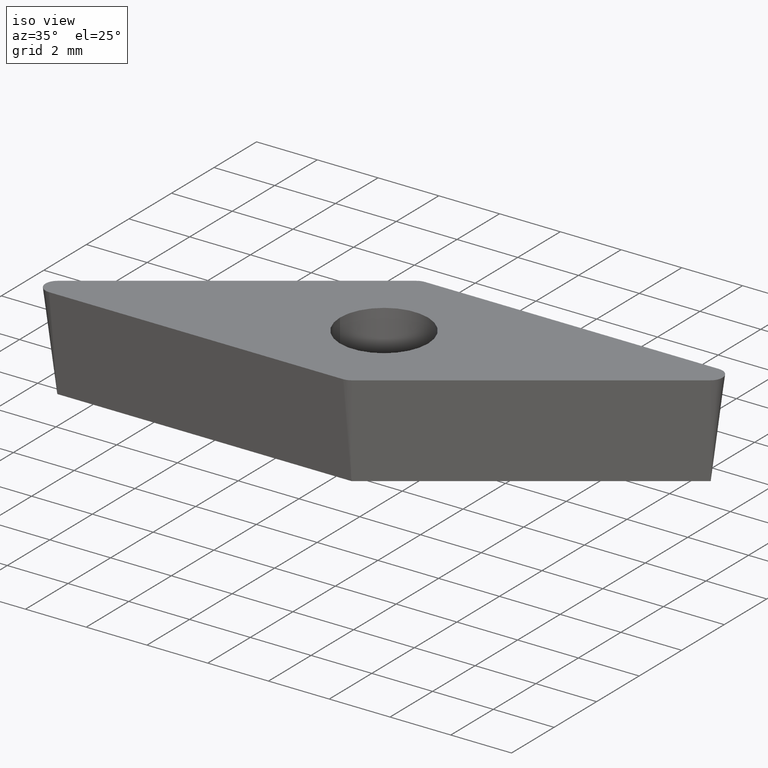
[diagram: clean part render]
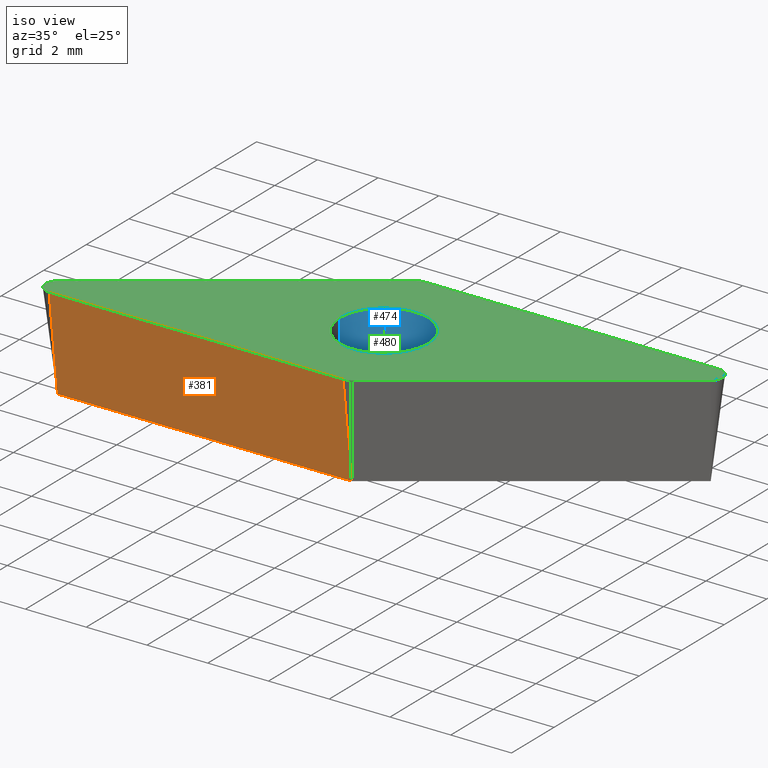
[diagram: same view with three faces highlighted in distinct colors, each labeled with its STEP entity id]
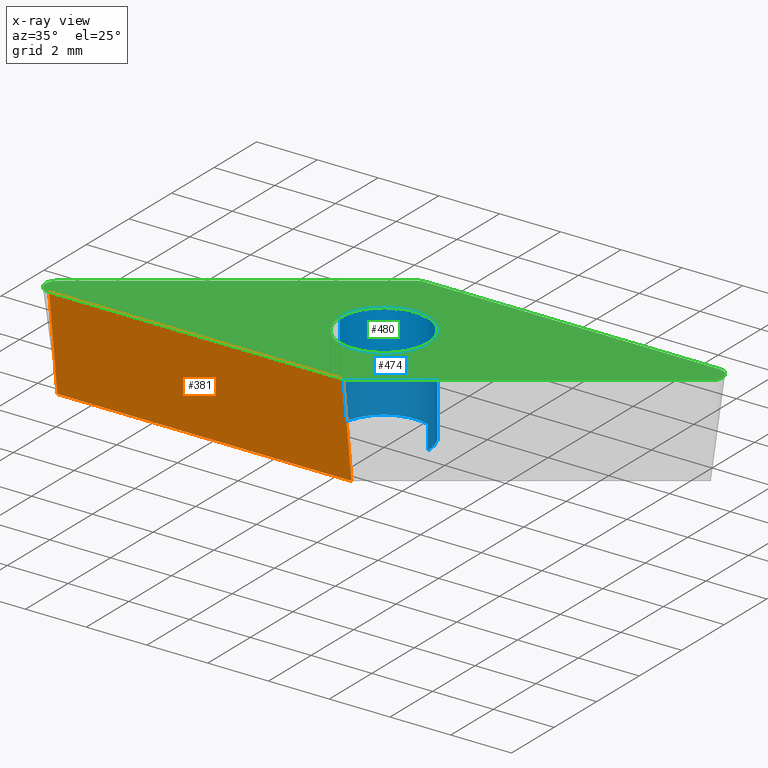
[diagram: x-ray of the same camera — body ghosted, the three highlighted faces saturated]
A machine part, iso view with three faces highlighted in distinct colors.
The next image is the same camera in x-ray (body ghosted, the three faces saturated) — at least one of them is partly hidden behind the body in this view.
Their STEP definitions:

[orange] entity #381 — the highlighted face is a freeform B-spline surface patch.
#5 = VERTEX_POINT ( 'NONE', #285 ) ;
#16 = CARTESIAN_POINT ( 'NONE',  ( 0.8749541391391757500, -2.784545096328762300, -3.180000000000000200 ) ) ;
#19 = CARTESIAN_POINT ( 'NONE',  ( -2.350422432759885300, -2.784545096328762300, -3.180000000000000200 ) ) ;
#22 = EDGE_CURVE ( 'NONE', #170, #138, #217, .T. ) ;
#95 = CARTESIAN_POINT ( 'NONE',  ( -5.575799004658937200, -2.784545096328763700, -3.180000000000000200 ) ) ;
#113 = ORIENTED_EDGE ( 'NONE', *, *, #485, .T. ) ;
#117 = CARTESIAN_POINT ( 'NONE',  ( -2.350422432759885300, -3.174999999999999800, 0.0000000000000000000 ) ) ;
#118 = CARTESIAN_POINT ( 'NONE',  ( 0.8749541391391757500, -3.174999999999999800, 0.0000000000000000000 ) ) ;
#121 = EDGE_LOOP ( 'NONE', ( #113, #335, #411, #430 ) ) ;
#136 = DIRECTION ( 'NONE',  ( -1.432199660924811500E-017, 0.1218693434051477400, -0.9925461516413219800 ) ) ;
#138 = VERTEX_POINT ( 'NONE', #373 ) ;
#158 = VERTEX_POINT ( 'NONE', #401 ) ;
#166 = CARTESIAN_POINT ( 'NONE',  ( 0.8749541391391757500, -3.174999999999999800, 0.0000000000000000000 ) ) ;
#170 = VERTEX_POINT ( 'NONE', #377 ) ;
#177 = CARTESIAN_POINT ( 'NONE',  ( -8.801175576557996600, -3.175000000000001200, 0.0000000000000000000 ) ) ;
#178 = DIRECTION ( 'NONE',  ( 1.000000000000000000, 1.175192727644018400E-016, -0.0000000000000000000 ) ) ;
#192 = CARTESIAN_POINT ( 'NONE',  ( 1.001073654690764100, -3.174999999999999800, 0.0000000000000000000 ) ) ;
#208 = CARTESIAN_POINT ( 'NONE',  ( -8.801175576557996600, -3.175000000000001200, 0.0000000000000000000 ) ) ;
#217 = LINE ( 'NONE', #177, #255 ) ;
#227 = DIRECTION ( 'NONE',  ( 1.432199660924811500E-017, -0.1218693434051477400, 0.9925461516413219800 ) ) ;
#242 = CARTESIAN_POINT ( 'NONE',  ( -5.575799004658937200, -3.175000000000001200, 0.0000000000000000000 ) ) ;
#243 = CARTESIAN_POINT ( 'NONE',  ( -8.801175576557996600, -2.706454115594516100, -3.815999999999999800 ) ) ;
#255 = VECTOR ( 'NONE', #136, 1000.000000000000000 ) ;
#262 = CARTESIAN_POINT ( 'NONE',  ( -5.575799004658937200, -2.706454115594516100, -3.815999999999999800 ) ) ;
#263 = CARTESIAN_POINT ( 'NONE',  ( -2.350422432759885300, -2.706454115594514800, -3.815999999999999800 ) ) ;
#264 = CARTESIAN_POINT ( 'NONE',  ( 0.8749541391391756400, -2.706454115594514800, -3.815999999999999800 ) ) ;
#285 = CARTESIAN_POINT ( 'NONE',  ( 0.8749541391391761900, -3.174999999999999800, 0.0000000000000000000 ) ) ;
#313 = B_SPLINE_CURVE_WITH_KNOTS ( 'NONE', 3,
 ( #342, #95, #19, #16 ),
 .UNSPECIFIED., .F., .F.,
 ( 4, 4 ),
 ( 0.0000000000000000000, 0.009676129715697173700 ),
 .UNSPECIFIED. ) ;
#335 = ORIENTED_EDGE ( 'NONE', *, *, #431, .T. ) ;
#342 = CARTESIAN_POINT ( 'NONE',  ( -8.801175576557996600, -2.784545096328763700, -3.180000000000000200 ) ) ;
#371 = VECTOR ( 'NONE', #178, 1000.000000000000000 ) ;
#373 = CARTESIAN_POINT ( 'NONE',  ( -8.801175576557996600, -2.784545096328763700, -3.180000000000000200 ) ) ;
#376 = LINE ( 'NONE', #192, #371 ) ;
#377 = CARTESIAN_POINT ( 'NONE',  ( -8.801175576557996600, -3.175000000000001200, 0.0000000000000000000 ) ) ;
#380 = B_SPLINE_SURFACE_WITH_KNOTS ( 'NONE', 1, 3, ( 
 ( #208, #242, #117, #118 ),
 ( #243, #262, #263, #264 ) ),
 .UNSPECIFIED., .F., .F., .F.,
 ( 2, 2 ),
 ( 4, 4 ),
 ( 0.0000000000000000000, 1.000000000000000000 ),
 ( -0.009802249231248762200, -0.0001261195155515880200 ),
 .UNSPECIFIED. ) ;
#381 = ADVANCED_FACE ( 'NONE', ( #486 ), #380, .T. ) ;
#392 = VECTOR ( 'NONE', #227, 1000.000000000000000 ) ;
#394 = LINE ( 'NONE', #166, #392 ) ;
#401 = CARTESIAN_POINT ( 'NONE',  ( 0.8749541391391757500, -2.784545096328762300, -3.180000000000000200 ) ) ;
#411 = ORIENTED_EDGE ( 'NONE', *, *, #438, .F. ) ;
#430 = ORIENTED_EDGE ( 'NONE', *, *, #22, .T. ) ;
#431 = EDGE_CURVE ( 'NONE', #158, #5, #394, .T. ) ;
#438 = EDGE_CURVE ( 'NONE', #170, #5, #376, .T. ) ;
#485 = EDGE_CURVE ( 'NONE', #138, #158, #313, .T. ) ;
#486 = FACE_OUTER_BOUND ( 'NONE', #121, .T. ) ;

[blue] entity #474 — the highlighted cylindrical surface (partial cylindrical patch) has radius 1.45 mm, axis along (0, 0, 1).
#41 = CARTESIAN_POINT ( 'NONE',  ( 0.0000000000000000000, 0.0000000000000000000, -3.180000000000000200 ) ) ;
#43 = DIRECTION ( 'NONE',  ( 1.000000000000000000, 0.0000000000000000000, 0.0000000000000000000 ) ) ;
#58 = AXIS2_PLACEMENT_3D ( 'NONE', #289, #347, #345 ) ;
#75 = ORIENTED_EDGE ( 'NONE', *, *, #414, .F. ) ;
#76 = ORIENTED_EDGE ( 'NONE', *, *, #458, .F. ) ;
#80 = CARTESIAN_POINT ( 'NONE',  ( 0.0000000000000000000, 0.0000000000000000000, -3.180000000000000200 ) ) ;
#82 = ORIENTED_EDGE ( 'NONE', *, *, #432, .T. ) ;
#84 = ORIENTED_EDGE ( 'NONE', *, *, #355, .T. ) ;
#109 = DIRECTION ( 'NONE',  ( 1.000000000000000000, 0.0000000000000000000, 0.0000000000000000000 ) ) ;
#111 = DIRECTION ( 'NONE',  ( 0.0000000000000000000, 0.0000000000000000000, 1.000000000000000000 ) ) ;
#131 = VERTEX_POINT ( 'NONE', #207 ) ;
#156 = EDGE_LOOP ( 'NONE', ( #75, #76, #82, #84 ) ) ;
#189 = VERTEX_POINT ( 'NONE', #390 ) ;
#202 = DIRECTION ( 'NONE',  ( 0.0000000000000000000, 0.0000000000000000000, 1.000000000000000000 ) ) ;
#207 = CARTESIAN_POINT ( 'NONE',  ( 1.450000000000000000, 0.0000000000000000000, -3.180000000000000200 ) ) ;
#216 = CARTESIAN_POINT ( 'NONE',  ( 1.450000000000000000, 0.0000000000000000000, -3.180000000000000200 ) ) ;
#224 = AXIS2_PLACEMENT_3D ( 'NONE', #80, #111, #109 ) ;
#232 = DIRECTION ( 'NONE',  ( 0.0000000000000000000, 0.0000000000000000000, 1.000000000000000000 ) ) ;
#237 = DIRECTION ( 'NONE',  ( 0.0000000000000000000, 0.0000000000000000000, 1.000000000000000000 ) ) ;
#239 = CARTESIAN_POINT ( 'NONE',  ( -1.450000000000000000, 1.775737858763661700E-016, -3.180000000000000200 ) ) ;
#241 = CARTESIAN_POINT ( 'NONE',  ( 1.450000000000000000, 0.0000000000000000000, 0.0000000000000000000 ) ) ;
#261 = AXIS2_PLACEMENT_3D ( 'NONE', #41, #232, #43 ) ;
#289 = CARTESIAN_POINT ( 'NONE',  ( 0.0000000000000000000, 0.0000000000000000000, 0.0000000000000000000 ) ) ;
#299 = FACE_OUTER_BOUND ( 'NONE', #156, .T. ) ;
#322 = CYLINDRICAL_SURFACE ( 'NONE', #261, 1.450000000000000000 ) ;
#345 = DIRECTION ( 'NONE',  ( 1.000000000000000000, 0.0000000000000000000, 0.0000000000000000000 ) ) ;
#347 = DIRECTION ( 'NONE',  ( 0.0000000000000000000, 0.0000000000000000000, 1.000000000000000000 ) ) ;
#355 = EDGE_CURVE ( 'NONE', #372, #189, #482, .T. ) ;
#360 = CARTESIAN_POINT ( 'NONE',  ( -1.450000000000000000, 1.775737858763661700E-016, -3.180000000000000200 ) ) ;
#370 = VERTEX_POINT ( 'NONE', #360 ) ;
#372 = VERTEX_POINT ( 'NONE', #241 ) ;
#385 = VECTOR ( 'NONE', #202, 1000.000000000000000 ) ;
#390 = CARTESIAN_POINT ( 'NONE',  ( -1.450000000000000000, 1.775737858763661700E-016, 0.0000000000000000000 ) ) ;
#393 = LINE ( 'NONE', #216, #385 ) ;
#399 = CIRCLE ( 'NONE', #224, 1.450000000000000000 ) ;
#407 = VECTOR ( 'NONE', #237, 1000.000000000000000 ) ;
#414 = EDGE_CURVE ( 'NONE', #370, #189, #422, .T. ) ;
#422 = LINE ( 'NONE', #239, #407 ) ;
#432 = EDGE_CURVE ( 'NONE', #131, #372, #393, .T. ) ;
#458 = EDGE_CURVE ( 'NONE', #131, #370, #399, .T. ) ;
#474 = ADVANCED_FACE ( 'NONE', ( #299 ), #322, .F. ) ;
#482 = CIRCLE ( 'NONE', #58, 1.450000000000000000 ) ;

[green] entity #480 — the highlighted planar face has unit normal (0, 0, -1).
#5 = VERTEX_POINT ( 'NONE', #285 ) ;
#20 = VECTOR ( 'NONE', #267, 1000.000000000000000 ) ;
#25 = VERTEX_POINT ( 'NONE', #323 ) ;
#30 = CARTESIAN_POINT ( 'NONE',  ( 8.801175576557993100, 3.175000000000002000, 0.0000000000000000000 ) ) ;
#31 = VERTEX_POINT ( 'NONE', #266 ) ;
#32 = VERTEX_POINT ( 'NONE', #30 ) ;
#34 = ORIENTED_EDGE ( 'NONE', *, *, #355, .F. ) ;
#36 = ORIENTED_EDGE ( 'NONE', *, *, #434, .F. ) ;
#39 = ORIENTED_EDGE ( 'NONE', *, *, #352, .T. ) ;
#40 = ORIENTED_EDGE ( 'NONE', *, *, #435, .T. ) ;
#45 = AXIS2_PLACEMENT_3D ( 'NONE', #252, #134, #145 ) ;
#48 = ORIENTED_EDGE ( 'NONE', *, *, #204, .T. ) ;
#51 = ORIENTED_EDGE ( 'NONE', *, *, #483, .T. ) ;
#54 = ORIENTED_EDGE ( 'NONE', *, *, #346, .T. ) ;
#56 = ORIENTED_EDGE ( 'NONE', *, *, #438, .T. ) ;
#58 = AXIS2_PLACEMENT_3D ( 'NONE', #289, #347, #345 ) ;
#61 = VERTEX_POINT ( 'NONE', #369 ) ;
#62 = DIRECTION ( 'NONE',  ( 0.0000000000000000000, 0.0000000000000000000, -1.000000000000000000 ) ) ;
#63 = ORIENTED_EDGE ( 'NONE', *, *, #387, .T. ) ;
#66 = EDGE_LOOP ( 'NONE', ( #39, #40, #48, #51, #54, #56, #63, #68, #73 ) ) ;
#68 = ORIENTED_EDGE ( 'NONE', *, *, #110, .T. ) ;
#73 = ORIENTED_EDGE ( 'NONE', *, *, #415, .T. ) ;
#89 = AXIS2_PLACEMENT_3D ( 'NONE', #367, #366, #361 ) ;
#94 = DIRECTION ( 'NONE',  ( -1.000000000000000000, 0.0000000000000000000, 0.0000000000000000000 ) ) ;
#103 = VERTEX_POINT ( 'NONE', #119 ) ;
#110 = EDGE_CURVE ( 'NONE', #164, #135, #478, .T. ) ;
#119 = CARTESIAN_POINT ( 'NONE',  ( -0.8749541391391701900, 3.174999999999999800, 0.0000000000000000000 ) ) ;
#120 = DIRECTION ( 'NONE',  ( -1.000000000000000000, -3.252606517456518800E-015, 0.0000000000000000000 ) ) ;
#129 = CARTESIAN_POINT ( 'NONE',  ( 10.06981349750329200, 3.175000000000002500, 0.0000000000000000000 ) ) ;
#133 = AXIS2_PLACEMENT_3D ( 'NONE', #223, #188, #187 ) ;
#134 = DIRECTION ( 'NONE',  ( -0.0000000000000000000, -0.0000000000000000000, 1.000000000000000000 ) ) ;
#135 = VERTEX_POINT ( 'NONE', #203 ) ;
#145 = DIRECTION ( 'NONE',  ( -1.000000000000000000, 1.084202172485504400E-015, 0.0000000000000000000 ) ) ;
#147 = DIRECTION ( 'NONE',  ( -0.0000000000000000000, -0.0000000000000000000, 1.000000000000000000 ) ) ;
#149 = CARTESIAN_POINT ( 'NONE',  ( -0.8749541391391700800, 2.774999999999999500, 0.0000000000000000000 ) ) ;
#161 = CARTESIAN_POINT ( 'NONE',  ( -8.801175576557996600, -2.775000000000000800, 0.0000000000000000000 ) ) ;
#163 = VECTOR ( 'NONE', #300, 1000.000000000000100 ) ;
#164 = VERTEX_POINT ( 'NONE', #402 ) ;
#167 = DIRECTION ( 'NONE',  ( -0.0000000000000000000, -0.0000000000000000000, 1.000000000000000000 ) ) ;
#170 = VERTEX_POINT ( 'NONE', #377 ) ;
#174 = CARTESIAN_POINT ( 'NONE',  ( 0.0000000000000000000, 0.0000000000000000000, 0.0000000000000000000 ) ) ;
#178 = DIRECTION ( 'NONE',  ( 1.000000000000000000, 1.175192727644018400E-016, -0.0000000000000000000 ) ) ;
#182 = CIRCLE ( 'NONE', #270, 0.3999999999999993000 ) ;
#184 = DIRECTION ( 'NONE',  ( 1.000000000000000000, 0.0000000000000000000, 0.0000000000000000000 ) ) ;
#186 = DIRECTION ( 'NONE',  ( 0.0000000000000000000, 0.0000000000000000000, 1.000000000000000000 ) ) ;
#187 = DIRECTION ( 'NONE',  ( -1.000000000000000000, 0.0000000000000000000, 0.0000000000000000000 ) ) ;
#188 = DIRECTION ( 'NONE',  ( -0.0000000000000000000, -0.0000000000000000000, 1.000000000000000000 ) ) ;
#189 = VERTEX_POINT ( 'NONE', #390 ) ;
#192 = CARTESIAN_POINT ( 'NONE',  ( 1.001073654690764100, -3.174999999999999800, 0.0000000000000000000 ) ) ;
#198 = AXIS2_PLACEMENT_3D ( 'NONE', #149, #147, #94 ) ;
#203 = CARTESIAN_POINT ( 'NONE',  ( 9.030606151098410800, 2.447339182284403500, 0.0000000000000000000 ) ) ;
#204 = EDGE_CURVE ( 'NONE', #61, #25, #213, .T. ) ;
#212 = EDGE_LOOP ( 'NONE', ( #34, #36 ) ) ;
#213 = LINE ( 'NONE', #306, #163 ) ;
#223 = CARTESIAN_POINT ( 'NONE',  ( 8.801175576557994900, 2.775000000000001700, 0.0000000000000000000 ) ) ;
#229 = FACE_OUTER_BOUND ( 'NONE', #66, .T. ) ;
#240 = AXIS2_PLACEMENT_3D ( 'NONE', #174, #186, #184 ) ;
#241 = CARTESIAN_POINT ( 'NONE',  ( 1.450000000000000000, 0.0000000000000000000, 0.0000000000000000000 ) ) ;
#252 = CARTESIAN_POINT ( 'NONE',  ( 0.8749541391391761900, -2.774999999999999500, 0.0000000000000000000 ) ) ;
#265 = AXIS2_PLACEMENT_3D ( 'NONE', #463, #62, #316 ) ;
#266 = CARTESIAN_POINT ( 'NONE',  ( -9.201175576557997000, -2.775000000000000800, 0.0000000000000000000 ) ) ;
#267 = DIRECTION ( 'NONE',  ( 0.8191520442889946900, 0.5735764363510419400, -0.0000000000000000000 ) ) ;
#270 = AXIS2_PLACEMENT_3D ( 'NONE', #161, #167, #120 ) ;
#285 = CARTESIAN_POINT ( 'NONE',  ( 0.8749541391391761900, -3.174999999999999800, 0.0000000000000000000 ) ) ;
#289 = CARTESIAN_POINT ( 'NONE',  ( 0.0000000000000000000, 0.0000000000000000000, 0.0000000000000000000 ) ) ;
#297 = FACE_BOUND ( 'NONE', #212, .T. ) ;
#300 = DIRECTION ( 'NONE',  ( -0.8191520442889948000, -0.5735764363510417200, -0.0000000000000000000 ) ) ;
#306 = CARTESIAN_POINT ( 'NONE',  ( -10.06981349750329400, -3.175000000000001200, 0.0000000000000000000 ) ) ;
#316 = DIRECTION ( 'NONE',  ( -1.000000000000000000, 0.0000000000000000000, -0.0000000000000000000 ) ) ;
#318 = PLANE ( 'NONE',  #265 ) ;
#323 = CARTESIAN_POINT ( 'NONE',  ( -9.030606151098412600, -2.447339182284403100, 0.0000000000000000000 ) ) ;
#345 = DIRECTION ( 'NONE',  ( 1.000000000000000000, 0.0000000000000000000, 0.0000000000000000000 ) ) ;
#346 = EDGE_CURVE ( 'NONE', #31, #170, #353, .T. ) ;
#347 = DIRECTION ( 'NONE',  ( 0.0000000000000000000, 0.0000000000000000000, 1.000000000000000000 ) ) ;
#352 = EDGE_CURVE ( 'NONE', #32, #103, #427, .T. ) ;
#353 = CIRCLE ( 'NONE', #89, 0.3999999999999993000 ) ;
#355 = EDGE_CURVE ( 'NONE', #372, #189, #482, .T. ) ;
#361 = DIRECTION ( 'NONE',  ( -1.000000000000000000, 0.0000000000000000000, 0.0000000000000000000 ) ) ;
#366 = DIRECTION ( 'NONE',  ( -0.0000000000000000000, -0.0000000000000000000, 1.000000000000000000 ) ) ;
#367 = CARTESIAN_POINT ( 'NONE',  ( -8.801175576557996600, -2.775000000000000800, 0.0000000000000000000 ) ) ;
#369 = CARTESIAN_POINT ( 'NONE',  ( -1.104384713679589200, 3.102660817715597200, 0.0000000000000000000 ) ) ;
#371 = VECTOR ( 'NONE', #178, 1000.000000000000000 ) ;
#372 = VERTEX_POINT ( 'NONE', #241 ) ;
#376 = LINE ( 'NONE', #192, #371 ) ;
#377 = CARTESIAN_POINT ( 'NONE',  ( -8.801175576557996600, -3.175000000000001200, 0.0000000000000000000 ) ) ;
#383 = CIRCLE ( 'NONE', #198, 0.3999999999999999700 ) ;
#387 = EDGE_CURVE ( 'NONE', #5, #164, #473, .T. ) ;
#389 = CIRCLE ( 'NONE', #240, 1.450000000000000000 ) ;
#390 = CARTESIAN_POINT ( 'NONE',  ( -1.450000000000000000, 1.775737858763661700E-016, 0.0000000000000000000 ) ) ;
#402 = CARTESIAN_POINT ( 'NONE',  ( 1.104384713679592800, -3.102660817715595000, 0.0000000000000000000 ) ) ;
#408 = DIRECTION ( 'NONE',  ( -1.000000000000000000, -2.350385455288036700E-016, -0.0000000000000000000 ) ) ;
#415 = EDGE_CURVE ( 'NONE', #135, #32, #465, .T. ) ;
#426 = CARTESIAN_POINT ( 'NONE',  ( -1.001073654690764100, 3.174999999999999800, 0.0000000000000000000 ) ) ;
#427 = LINE ( 'NONE', #426, #481 ) ;
#434 = EDGE_CURVE ( 'NONE', #189, #372, #389, .T. ) ;
#435 = EDGE_CURVE ( 'NONE', #103, #61, #383, .T. ) ;
#438 = EDGE_CURVE ( 'NONE', #170, #5, #376, .T. ) ;
#463 = CARTESIAN_POINT ( 'NONE',  ( 0.0000000000000000000, 0.0000000000000000000, 0.0000000000000000000 ) ) ;
#465 = CIRCLE ( 'NONE', #133, 0.3999999999999993000 ) ;
#473 = CIRCLE ( 'NONE', #45, 0.4000000000000000200 ) ;
#478 = LINE ( 'NONE', #129, #20 ) ;
#480 = ADVANCED_FACE ( 'NONE', ( #297, #229 ), #318, .F. ) ;
#481 = VECTOR ( 'NONE', #408, 1000.000000000000000 ) ;
#482 = CIRCLE ( 'NONE', #58, 1.450000000000000000 ) ;
#483 = EDGE_CURVE ( 'NONE', #25, #31, #182, .T. ) ;